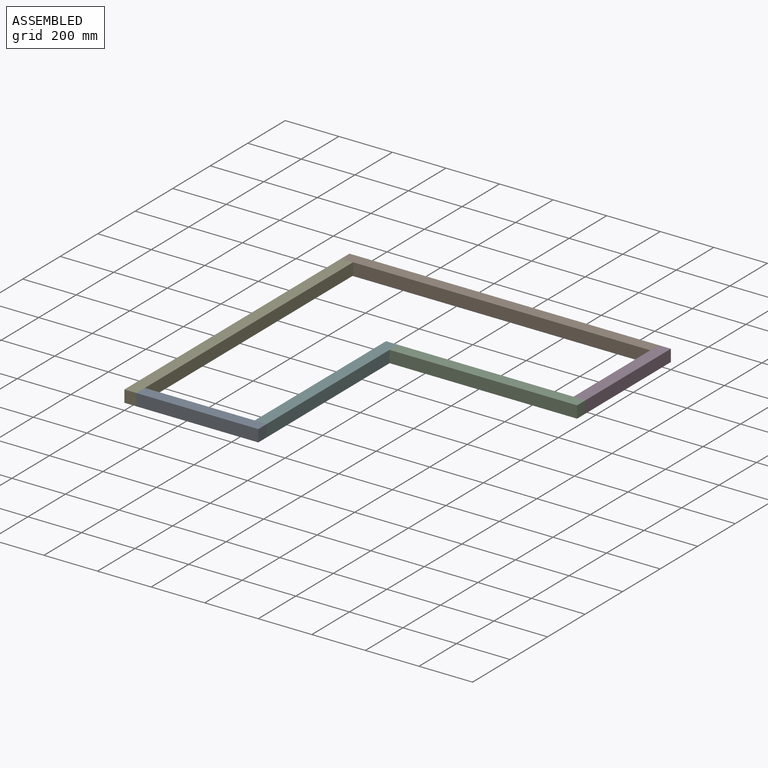
[diagram: assembled view]
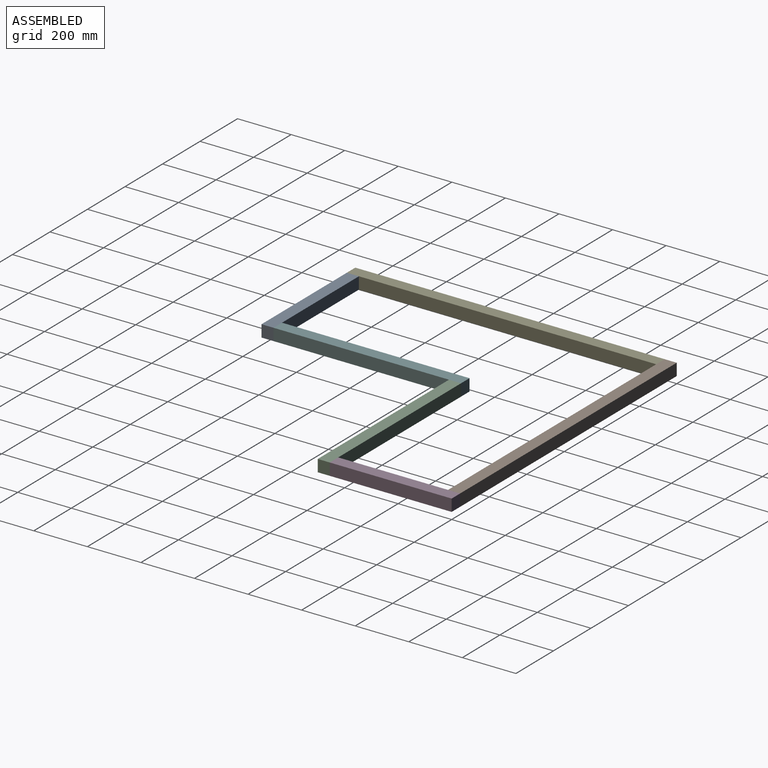
[diagram: assembled view, second angle]
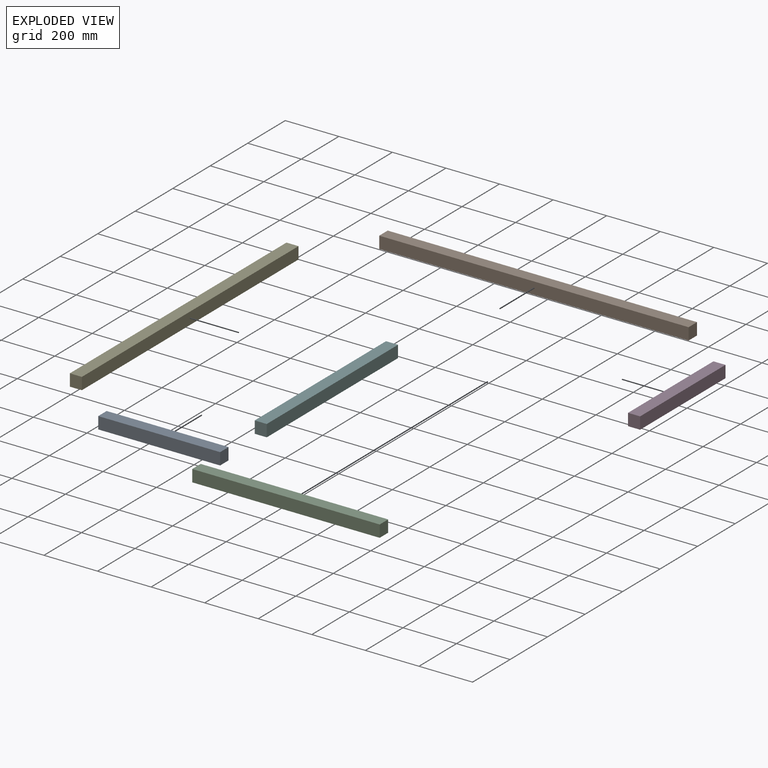
[diagram: exploded view]
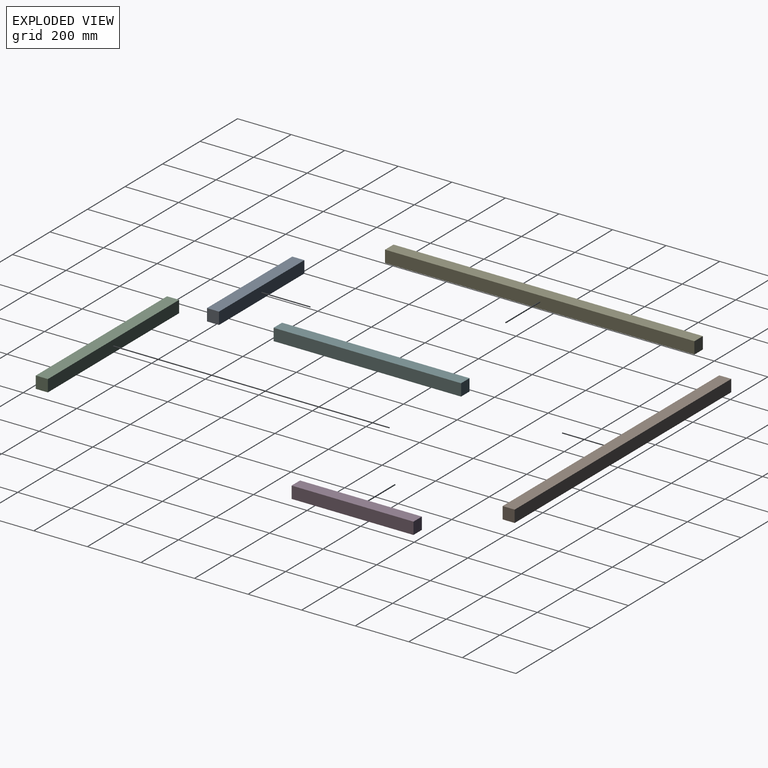
[diagram: exploded view, second angle]
ASSEMBLY  parts=6 mates=5
PART A: 6 faces, bbox 45x455x45 mm
  f0: plane 455x45mm, normal (0,0,1), area 20475mm2, adj f1,f3,f4,f5
  f1: plane 455x45mm, normal (-1,0,0), area 20475mm2, adj f0,f2,f4,f5
  f2: plane 455x45mm, normal (0,0,-1), area 20475mm2, adj f1,f3,f4,f5
  f3: plane 455x45mm, normal (1,0,0), area 20475mm2, adj f0,f2,f4,f5
  f4: plane 45x45mm, normal (0,1,0), area 2025mm2, adj f0,f1,f2,f3
  f5: plane 45x45mm, normal (0,-1,0), area 2025mm2, adj f0,f1,f2,f3
PART B: 6 faces, bbox 45x1155x45 mm
  f0: plane 1155x45mm, normal (0,0,1), area 51975mm2, adj f1,f3,f4,f5
  f1: plane 1155x45mm, normal (-1,0,0), area 51975mm2, adj f0,f2,f4,f5
  f2: plane 1155x45mm, normal (0,0,-1), area 51975mm2, adj f1,f3,f4,f5
  f3: plane 1155x45mm, normal (1,0,0), area 51975mm2, adj f0,f2,f4,f5
  f4: plane 45x45mm, normal (0,1,0), area 2025mm2, adj f0,f1,f2,f3
  f5: plane 45x45mm, normal (0,-1,0), area 2025mm2, adj f0,f1,f2,f3
PART C: 6 faces, bbox 45x700x45 mm
  f0: plane 700x45mm, normal (0,0,1), area 31500mm2, adj f1,f3,f4,f5
  f1: plane 700x45mm, normal (-1,0,0), area 31500mm2, adj f0,f2,f4,f5
  f2: plane 700x45mm, normal (0,0,-1), area 31500mm2, adj f1,f3,f4,f5
  f3: plane 700x45mm, normal (1,0,0), area 31500mm2, adj f0,f2,f4,f5
  f4: plane 45x45mm, normal (0,1,0), area 2025mm2, adj f0,f1,f2,f3
  f5: plane 45x45mm, normal (0,-1,0), area 2025mm2, adj f0,f1,f2,f3
PART D: same geometry as A
PART E: same geometry as B
PART F: same geometry as C
PLACE A rot(axis=(0,0,-1),90deg) t=(45,45,0)mm
PLACE B rot(axis=(0,0,-1),90deg) t=(0,1200,0)mm
PLACE C rot(axis=(0,0,-1),90deg) t=(500,745,0)mm
PLACE D rot(axis=(1,0,0),0deg) t=(1155,745,0)mm
PLACE E rot(axis=(0,0,1),0deg) t=(0,0,0)mm
PLACE F rot(axis=(0,0,1),0deg) t=(455,45,0)mm
MATE fastened E.f3 <-> A.f5  axis (1,0,0) through (45,0,22.5)mm
MATE fastened C.f1 <-> D.f5  axis (0,1,0) through (1200,745,22.5)mm
MATE fastened F.f5 <-> A.f1  axis (0,-1,0) through (500,45,22.5)mm
MATE fastened B.f4 <-> D.f1  axis (1,0,0) through (1155,1200,22.5)mm
MATE fastened E.f4 <-> B.f3  axis (0,1,0) through (0,1155,22.5)mm
